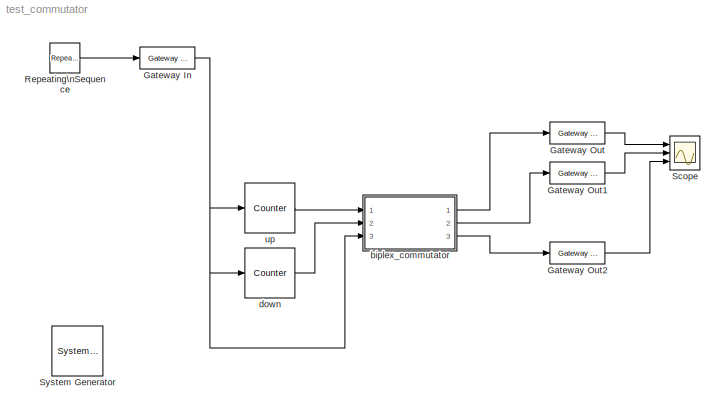
MODEL test_commutator
KIND model
BLOCK [Reference]  System Generator  REF=xbsIndex_r3/ System Generator
  AttributesFormatString = System\\nGenerator
  Ports = []
  ShowPortLabels = on
  SourceBlock = xbsIndex_r3/ System Generator
  SourceType = Xilinx System Generator
  Tag = genX
  UserData = DataTag0
  UserDataPersistent = on
  core_generation = According to Block Masks
  dbl_ovrd = According to Block Masks
  deprecated_control = off
  directory = ./netlist.tmp
  eval_field = 0
  incr_netlist = off
  package = bg575
  part = xc2v1000
  run_coregen = off
  simulink_period = 1
  speed = -4
  synthesis_tool = XST
  sysclk_period = 100
  testbench = off
  trim_vbits = Everywhere in SubSystem
  xilinxfamily = Virtex2
BLOCK [Reference] Gateway In  REF=xbsIndex_r3/Gateway In
  LOCs = {}
  Ports = [1, 1]
  SourceBlock = xbsIndex_r3/Gateway In
  SourceType = Xilinx Gateway In
  arith_type = Boolean
  bin_pt = 6
  dbl_ovrd = off
  locs_specified = off
  n_bits = 8
  needs_fixed_name = off
  overflow = Wrap
  period = 1
  quantization = Truncate
  show_param = off
  timing_constraint = None
  xl_area = [0, 0, 0, 0, 0, 0, 0]
  xl_use_area = off
BLOCK [Reference] Gateway Out  REF=xbsIndex_r3/Gateway Out
  LOCs = {}
  Ports = [1, 1]
  SourceBlock = xbsIndex_r3/Gateway Out
  SourceType = Xilinx Gateway Out
  arith_type = Boolean
  bin_pt = 6
  hdl_port = on
  locs_specified = off
  nbits = 8
  needs_fixed_name = off
  output_type = Double
  overflow = Wrap
  quantization = Truncate
  show_param = off
  timing_constraint = None
  xl_area = [0, 0, 0, 0, 0, 0, 0]
  xl_use_area = off
BLOCK [Reference] Gateway Out1  REF=xbsIndex_r3/Gateway Out
  LOCs = {}
  Ports = [1, 1]
  SourceBlock = xbsIndex_r3/Gateway Out
  SourceType = Xilinx Gateway Out
  arith_type = Boolean
  bin_pt = 6
  hdl_port = on
  locs_specified = off
  nbits = 8
  needs_fixed_name = off
  output_type = Double
  overflow = Wrap
  quantization = Truncate
  show_param = off
  timing_constraint = None
  xl_area = [0, 0, 0, 0, 0, 0, 0]
  xl_use_area = off
BLOCK [Reference] Gateway Out2  REF=xbsIndex_r3/Gateway Out
  LOCs = {}
  Ports = [1, 1]
  SourceBlock = xbsIndex_r3/Gateway Out
  SourceType = Xilinx Gateway Out
  arith_type = Boolean
  bin_pt = 6
  hdl_port = on
  locs_specified = off
  nbits = 8
  needs_fixed_name = off
  output_type = Double
  overflow = Wrap
  quantization = Truncate
  show_param = off
  timing_constraint = None
  xl_area = [0, 0, 0, 0, 0, 0, 0]
  xl_use_area = off
BLOCK [Reference] Repeating\nSequence  REF=simulink/Sources/Repeating\nSequence
  Ports = [0, 1]
  ShowPortLabels = on
  SourceBlock = simulink/Sources/Repeating\nSequence
  SourceType = Repeating table
  rep_seq_t = [0:32]
  rep_seq_y = [1 zeros(1,31) 1]
BLOCK [Scope] Scope
  DataFormat = StructureWithTime
  NumInputPorts = 3
  Ports = [3]
  YMax = 5~5~5
  YMin = -5~-5~-5
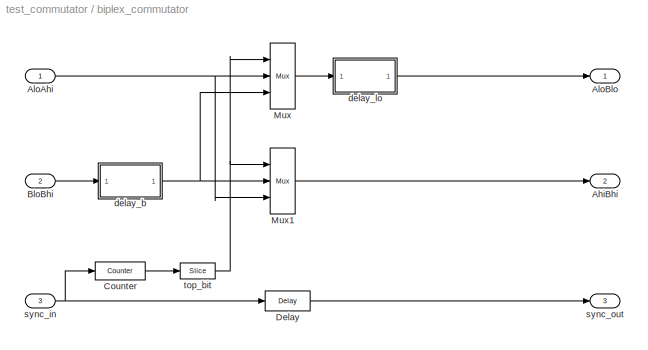
BLOCK [SubSystem] biplex_commutator
  AttributesFormatString = size = 4\ndelay slr
  MaskCallbackString = ||
  MaskDescription = The biplex commutator commutes the first half of the BloBhi input \"block\"  with the last half of the AloAhi input \"block\".  A \"block\" is 2^log2_size consecutive samples (i.e. always a power of 2).  sync_in precedes the first data input sample by one clock cycle.  Overall latency from sync_in to sync_out is 2^(log2_size-1)+1.
  MaskEnableString = on,on,on
  MaskHelp = <pre>\nDescription::\n\nThe biplex commutator commutes the first half of the BloBhi input \"block\"  with the last half\nof the AloAhi input \"block\".  A \"block\" is 2^log2_size consecutive samples (i.e. always a\npower of 2).\n\nsync_in precedes the first data input sample by one clock cycle.\nsync_out precedes the corresponding output sample by one clock cycle.\nOverall latency from sync_in to...<+566ch>
  MaskIconFrame = on
  MaskIconOpaque = on
  MaskIconRotate = none
  MaskIconUnits = autoscale
  MaskInitialization = biplex_commutator_init(gcb, ...\n    log2_size, ...\n    n_bits, ...\n    use_bram);\n
  MaskPromptString = Log2 Block Size|Bit Width|Use BRAM
  MaskSelfModifiable = on
  MaskStyleString = edit,edit,checkbox
  MaskTabNameString = ,,
  MaskToolTipString = on,on,on
  MaskTunableValueString = on,on,on
  MaskType = Biplex Commutator
  MaskValueString = 2|2|off
  MaskVarAliasString = ,,
  MaskVariables = log2_size=@1;n_bits=@2;use_bram=@3;
  MaskVisibilityString = on,on,on
  MinAlgLoopOccurrences = off
  Ports = [3, 3]
  RTWSystemCode = Auto
  TreatAsAtomicUnit = off
  UserData = DataTag1
  UserDataPersistent = on
BLOCK [Outport] biplex_commutator/AhiBhi
  BusOutputAsStruct = off
  IconDisplay = Port number
  Port = 2
BLOCK [Inport] biplex_commutator/AloAhi
  IconDisplay = Port number
  LatchInput = off
  Port = 1
BLOCK [Outport] biplex_commutator/AloBlo
  BusOutputAsStruct = off
  IconDisplay = Port number
BLOCK [Inport] biplex_commutator/BloBhi
  IconDisplay = Port number
  LatchInput = off
  Port = 2
BLOCK [Reference] biplex_commutator/Counter  REF=xbsIndex_r3/Counter
  Ports = [1, 1]
  SourceBlock = xbsIndex_r3/Counter
  SourceType = Xilinx Counter Block
  arith_type = Unsigned
  bin_pt = 0
  cnt_by_val = 1
  cnt_to = Inf
  cnt_type = Free Running
  dbl_ovrd = off
  en = off
  explicit_period = off
  gen_core = off
  load_pin = off
  n_bits = 2
  operation = Up
  period = 1
  rst = on
  show_param = off
  start_count = 0
  use_rpm = on
  xl_area = [0, 0, 0, 0, 0, 0, 0]
  xl_use_area = off
BLOCK [Reference] biplex_commutator/Delay  REF=xbsIndex_r3/Delay
  Ports = [1, 1]
  SourceBlock = xbsIndex_r3/Delay
  SourceType = Xilinx Delay Block
  accept_only_valid = off
  dbl_ovrd = off
  en = off
  explicit_period = off
  init_zero = on
  latency = 3
  period = 1
  reg_retiming = off
  show_param = off
  xl_area = [0, 0, 0, 0, 0, 0, 0]
  xl_use_area = off
BLOCK [Reference] biplex_commutator/Mux  REF=xbsIndex_r3/Mux
  Ports = [3, 1]
  SourceBlock = xbsIndex_r3/Mux
  SourceType = Xilinx Multiplexer Block
  arith_type = Signed  (2's comp)
  bin_pt = 2
  dbl_ovrd = off
  en = off
  explicit_period = off
  gen_core = off
  inputs = 2
  latency = 1
  mux_type = off
  n_bits = 8
  overflow = Wrap
  period = 1
  precision = Full
  quantization = Truncate
  show_param = off
  use_rpm = off
  xl_area = [0, 0, 0, 0, 0, 0, 0]
  xl_use_area = off
BLOCK [Reference] biplex_commutator/Mux1  REF=xbsIndex_r3/Mux
  Ports = [3, 1]
  SourceBlock = xbsIndex_r3/Mux
  SourceType = Xilinx Multiplexer Block
  arith_type = Signed  (2's comp)
  bin_pt = 2
  dbl_ovrd = off
  en = off
  explicit_period = off
  gen_core = off
  inputs = 2
  latency = 1
  mux_type = off
  n_bits = 8
  overflow = Wrap
  period = 1
  precision = Full
  quantization = Truncate
  show_param = on
  use_rpm = off
  xl_area = [0, 0, 0, 0, 0, 0, 0]
  xl_use_area = off
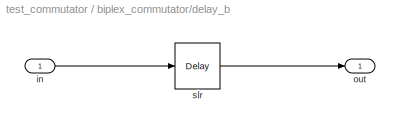
BLOCK [SubSystem] biplex_commutator/delay_b
  AttributesFormatString = slr depth = 2
  MaskDescription = A delay block that uses SLR16 elements for its storage.
  MaskEnableString = on
  MaskHelp = <pre>\nDescription::\n\nA delay block that uses SLR16 elements for its storage.\n\nMask Parameters::\n\nDelay Depth (delay_depth): The length of the delay.\n</pre>
  MaskIconFrame = on
  MaskIconOpaque = on
  MaskIconRotate = none
  MaskIconUnits = autoscale
  MaskPromptString = Delay Depth
  MaskSelfModifiable = on
  MaskStyleString = edit
  MaskToolTipString = on
  MaskTunableValueString = on
  MaskType = SLR16 Delay
  MaskValueString = 2
  MaskVariables = delay_depth=@1;
  MaskVisibilityString = on
  MinAlgLoopOccurrences = off
  Ports = [1, 1]
  RTWSystemCode = Auto
  TreatAsAtomicUnit = off
  UserData = DataTag2
  UserDataPersistent = on
BLOCK [Inport] biplex_commutator/delay_b/in
  IconDisplay = Port number
  LatchInput = off
  Port = 1
BLOCK [Outport] biplex_commutator/delay_b/out
  BusOutputAsStruct = off
  IconDisplay = Port number
BLOCK [Reference] biplex_commutator/delay_b/slr  REF=xbsIndex_r3/Delay
  Ports = [1, 1]
  SourceBlock = xbsIndex_r3/Delay
  SourceType = Xilinx Delay Block
  accept_only_valid = off
  dbl_ovrd = off
  en = off
  explicit_period = off
  init_zero = on
  latency = 2
  period = 1
  reg_retiming = off
  show_param = off
  xl_area = [0, 0, 0, 0, 0, 0, 0]
  xl_use_area = off
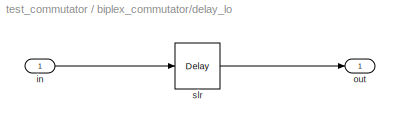
BLOCK [SubSystem] biplex_commutator/delay_lo
  AttributesFormatString = slr depth = 2
  MaskDescription = A delay block that uses SLR16 elements for its storage.
  MaskEnableString = on
  MaskHelp = <pre>\nDescription::\n\nA delay block that uses SLR16 elements for its storage.\n\nMask Parameters::\n\nDelay Depth (delay_depth): The length of the delay.\n</pre>
  MaskIconFrame = on
  MaskIconOpaque = on
  MaskIconRotate = none
  MaskIconUnits = autoscale
  MaskPromptString = Delay Depth
  MaskSelfModifiable = on
  MaskStyleString = edit
  MaskToolTipString = on
  MaskTunableValueString = on
  MaskType = SLR16 Delay
  MaskValueString = 2
  MaskVariables = delay_depth=@1;
  MaskVisibilityString = on
  MinAlgLoopOccurrences = off
  Ports = [1, 1]
  RTWSystemCode = Auto
  TreatAsAtomicUnit = off
  UserData = DataTag3
  UserDataPersistent = on
BLOCK [Inport] biplex_commutator/delay_lo/in
  IconDisplay = Port number
  LatchInput = off
  Port = 1
BLOCK [Outport] biplex_commutator/delay_lo/out
  BusOutputAsStruct = off
  IconDisplay = Port number
BLOCK [Reference] biplex_commutator/delay_lo/slr  REF=xbsIndex_r3/Delay
  Ports = [1, 1]
  SourceBlock = xbsIndex_r3/Delay
  SourceType = Xilinx Delay Block
  accept_only_valid = off
  dbl_ovrd = off
  en = off
  explicit_period = off
  init_zero = on
  latency = 2
  period = 1
  reg_retiming = off
  show_param = off
  xl_area = [0, 0, 0, 0, 0, 0, 0]
  xl_use_area = off
BLOCK [Inport] biplex_commutator/sync_in
  IconDisplay = Port number
  LatchInput = off
  Port = 3
BLOCK [Outport] biplex_commutator/sync_out
  BusOutputAsStruct = off
  IconDisplay = Port number
  Port = 3
BLOCK [Reference] biplex_commutator/top_bit  REF=xbsIndex_r3/Slice
  Ports = [1, 1]
  SourceBlock = xbsIndex_r3/Slice
  SourceType = Xilinx Slice Block
  base0 = LSB of Input
  base1 = MSB of Input
  bit0 = 0
  bit1 = 0
  boolean_output = off
  dbl_ovrd = off
  explicit_period = off
  mode = Upper Bit Location + Width
  nbits = 1
  period = 1
BLOCK [Reference] down  REF=xbsIndex_r3/Counter
  Ports = [1, 1]
  SourceBlock = xbsIndex_r3/Counter
  SourceType = Xilinx Counter Block
  arith_type = Unsigned
  bin_pt = 0
  cnt_by_val = 1
  cnt_to = Inf
  cnt_type = Free Running
  dbl_ovrd = off
  en = off
  explicit_period = off
  gen_core = off
  load_pin = off
  n_bits = 4
  operation = Down
  period = 1
  rst = on
  show_param = off
  start_count = 15
  use_rpm = on
  xl_area = [0, 0, 0, 0, 0, 0, 0]
  xl_use_area = off
BLOCK [Reference] up  REF=xbsIndex_r3/Counter
  Ports = [1, 1]
  SourceBlock = xbsIndex_r3/Counter
  SourceType = Xilinx Counter Block
  arith_type = Unsigned
  bin_pt = 0
  cnt_by_val = 1
  cnt_to = Inf
  cnt_type = Free Running
  dbl_ovrd = off
  en = off
  explicit_period = off
  gen_core = off
  load_pin = off
  n_bits = 4
  operation = Up
  period = 1
  rst = on
  show_param = off
  start_count = 0
  use_rpm = on
  xl_area = [0, 0, 0, 0, 0, 0, 0]
  xl_use_area = off
NET Gateway In:1 -> biplex_commutator:3, down:1, up:1
LINE Gateway Out1:1 -> Scope:2
LINE Gateway Out2:1 -> Scope:3
LINE Gateway Out:1 -> Scope:1
LINE Repeating\nSequence:1 -> Gateway In:1
NET biplex_commutator/AloAhi:1 -> biplex_commutator/Mux1:3, biplex_commutator/Mux:2
LINE biplex_commutator/BloBhi:1 -> biplex_commutator/delay_b:1
LINE biplex_commutator/Counter:1 -> biplex_commutator/top_bit:1
LINE biplex_commutator/Delay:1 -> biplex_commutator/sync_out:1
LINE biplex_commutator/Mux1:1 -> biplex_commutator/AhiBhi:1
LINE biplex_commutator/Mux:1 -> biplex_commutator/delay_lo:1
LINE biplex_commutator/delay_b/in:1 -> biplex_commutator/delay_b/slr:1
LINE biplex_commutator/delay_b/slr:1 -> biplex_commutator/delay_b/out:1
NET biplex_commutator/delay_b:1 -> biplex_commutator/Mux1:2, biplex_commutator/Mux:3
LINE biplex_commutator/delay_lo/in:1 -> biplex_commutator/delay_lo/slr:1
LINE biplex_commutator/delay_lo/slr:1 -> biplex_commutator/delay_lo/out:1
LINE biplex_commutator/delay_lo:1 -> biplex_commutator/AloBlo:1
NET biplex_commutator/sync_in:1 -> biplex_commutator/Counter:1, biplex_commutator/Delay:1
NET biplex_commutator/top_bit:1 -> biplex_commutator/Mux1:1, biplex_commutator/Mux:1
LINE biplex_commutator:1 -> Gateway Out:1
LINE biplex_commutator:2 -> Gateway Out1:1
LINE biplex_commutator:3 -> Gateway Out2:1
LINE down:1 -> biplex_commutator:2
LINE up:1 -> biplex_commutator:1
note: NET lines group one-source signal fan-out (src -> all destinations, sorted); 1:1 wires keep LINE
